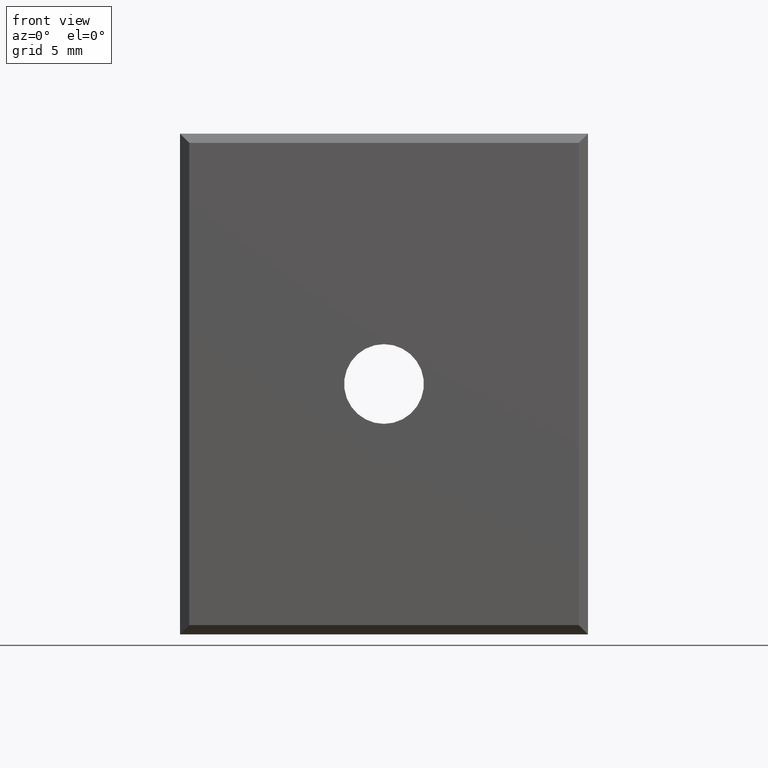
[diagram: clean part render]
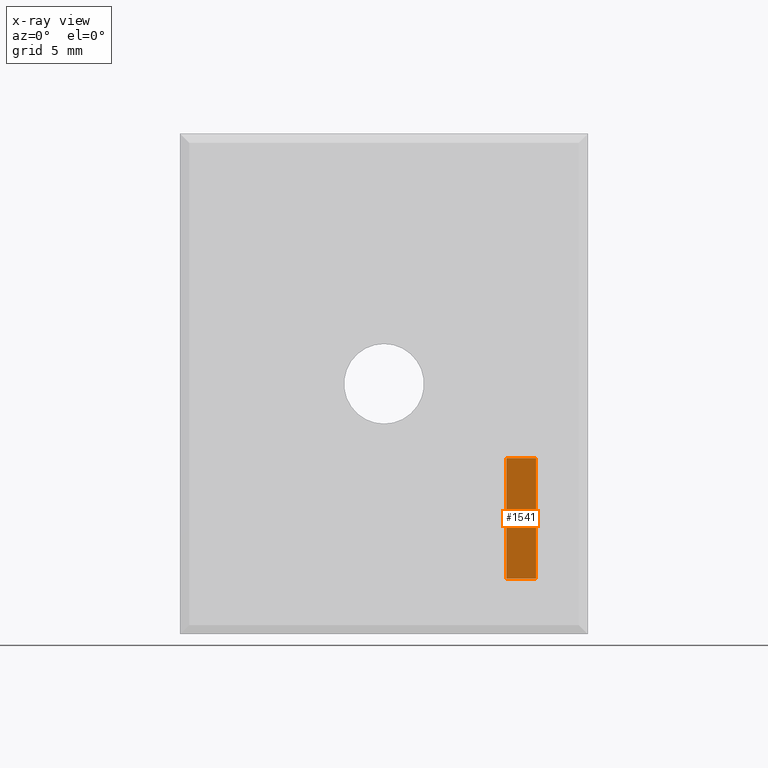
[diagram: x-ray — body ghosted, one internal face saturated and labeled with its STEP entity id]
A machine part, front view, then the same camera in x-ray: the body is ghosted and one INTERNAL B-rep face — a face not visible from any outside direction — is saturated and labeled: STEP entity #1541.
In plain terms, the highlighted planar face has unit normal (0, 1, 0).
Its self-contained STEP definition (entity closure, byte-faithful):
#825 = LINE ( 'NONE', #829, #3888 ) ;
#827 = LINE ( 'NONE', #840, #3945 ) ;
#829 = CARTESIAN_POINT ( 'NONE',  ( -12.60000000000000300, 11.95000000000000100, -24.00000000000000000 ) ) ;
#835 = DIRECTION ( 'NONE',  ( 0.0000000000000000000, -0.0000000000000000000, 1.000000000000000000 ) ) ;
#840 = CARTESIAN_POINT ( 'NONE',  ( 17.60000000000014700, 11.95000000000000100, -17.50000000000000000 ) ) ;
#845 = DIRECTION ( 'NONE',  ( -1.000000000000000000, -0.0000000000000000000, 0.0000000000000000000 ) ) ;
#947 = CARTESIAN_POINT ( 'NONE',  ( -12.60000000000000300, 11.95000000000000100, -17.50000000000000000 ) ) ;
#953 = DIRECTION ( 'NONE',  ( -1.000000000000000000, -0.0000000000000000000, 0.0000000000000000000 ) ) ;
#979 = LINE ( 'NONE', #947, #3969 ) ;
#1158 = EDGE_CURVE ( 'NONE', #2748, #2707, #825, .T. ) ;
#1163 = EDGE_CURVE ( 'NONE', #2707, #2716, #827, .T. ) ;
#1202 = EDGE_CURVE ( 'NONE', #2726, #2716, #979, .T. ) ;
#1250 = EDGE_CURVE ( 'NONE', #2748, #2726, #4914, .T. ) ;
#1541 = ADVANCED_FACE ( 'NONE', ( #1815 ), #1809, .F. ) ;
#1781 = CARTESIAN_POINT ( 'NONE',  ( -12.60000000000000300, 11.95000000000000100, -17.50000000000000000 ) ) ;
#1809 = PLANE ( 'NONE',  #3648 ) ;
#1810 = DIRECTION ( 'NONE',  ( 0.0000000000000000000, 1.000000000000000000, 0.0000000000000000000 ) ) ;
#1815 = FACE_OUTER_BOUND ( 'NONE', #2857, .T. ) ;
#1820 = DIRECTION ( 'NONE',  ( 0.0000000000000000000, -0.0000000000000000000, 1.000000000000000000 ) ) ;
#2374 = CARTESIAN_POINT ( 'NONE',  ( 17.60000000000014700, 11.95000000000000100, -17.50000000000000000 ) ) ;
#2394 = CARTESIAN_POINT ( 'NONE',  ( 19.19999999999999900, 11.95000000000000100, -17.50000000000000000 ) ) ;
#2402 = CARTESIAN_POINT ( 'NONE',  ( 19.19999999999999900, 11.95000000000000100, -24.00000000000000400 ) ) ;
#2405 = CARTESIAN_POINT ( 'NONE',  ( 17.60000000000014700, 11.95000000000000100, -24.00000000000000400 ) ) ;
#2707 = VERTEX_POINT ( 'NONE', #2405 ) ;
#2716 = VERTEX_POINT ( 'NONE', #2374 ) ;
#2726 = VERTEX_POINT ( 'NONE', #2394 ) ;
#2748 = VERTEX_POINT ( 'NONE', #2402 ) ;
#2857 = EDGE_LOOP ( 'NONE', ( #3207, #3280, #3288, #3275 ) ) ;
#3207 = ORIENTED_EDGE ( 'NONE', *, *, #1163, .F. ) ;
#3275 = ORIENTED_EDGE ( 'NONE', *, *, #1202, .T. ) ;
#3280 = ORIENTED_EDGE ( 'NONE', *, *, #1158, .F. ) ;
#3288 = ORIENTED_EDGE ( 'NONE', *, *, #1250, .T. ) ;
#3648 = AXIS2_PLACEMENT_3D ( 'NONE', #1781, #1810, #1820 ) ;
#3888 = VECTOR ( 'NONE', #845, 1000.000000000000000 ) ;
#3945 = VECTOR ( 'NONE', #835, 1000.000000000000000 ) ;
#3969 = VECTOR ( 'NONE', #953, 1000.000000000000000 ) ;
#3990 = VECTOR ( 'NONE', #4926, 1000.000000000000000 ) ;
#4914 = LINE ( 'NONE', #4918, #3990 ) ;
#4918 = CARTESIAN_POINT ( 'NONE',  ( 19.19999999999999900, 11.95000000000000100, -20.75000000000000400 ) ) ;
#4926 = DIRECTION ( 'NONE',  ( -0.0000000000000000000, -0.0000000000000000000, 1.000000000000000000 ) ) ;